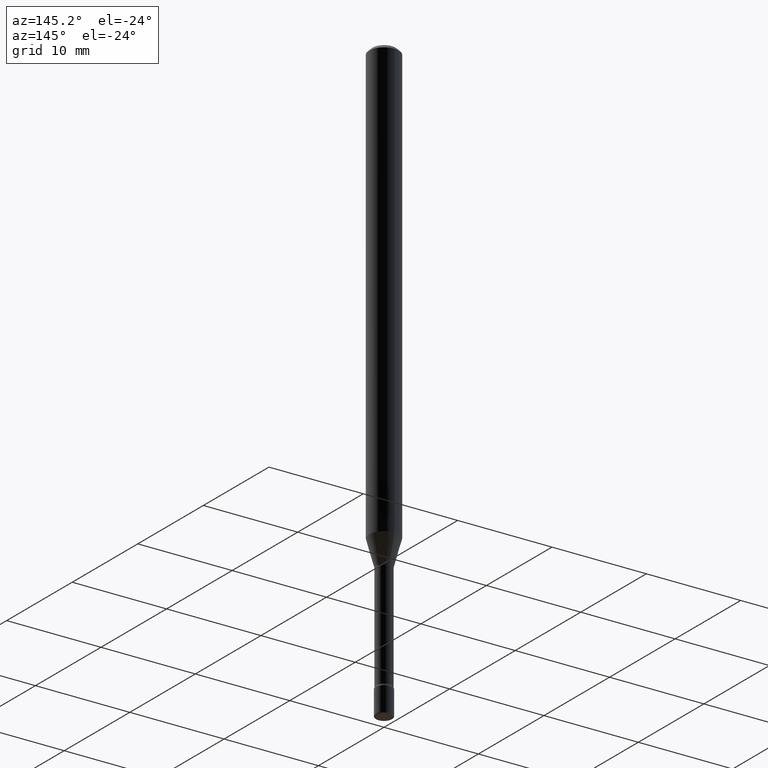
[diagram: clean part render]
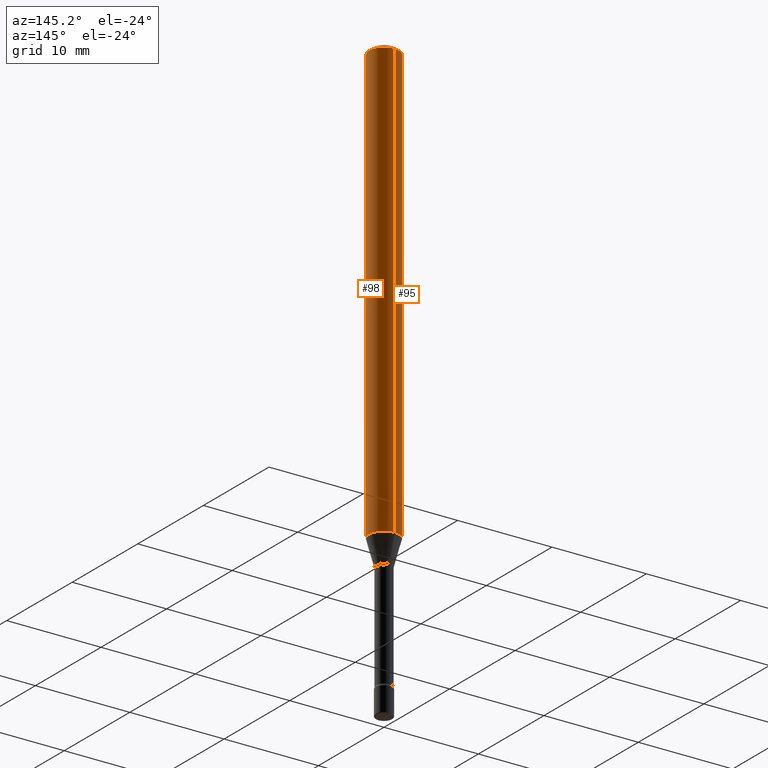
[diagram: same view with one multi-face feature highlighted, each face labeled with its STEP entity id]
A machine part, auxiliary view. The highlighted faces form ONE feature: a constant-radius fillet chain: 2 tangent blend faces with common blend radius 1.5875 mm. The faces share edges in the B-rep.
Their STEP definitions:
[1] entity #95 (Cylinder):
#1 = CARTESIAN_POINT ( 'NONE',  ( -1.169113584055446105E-44, 1.669184350826100908E-30, 4.780733988912460139E-16 ) ) ;
#16 = VERTEX_POINT ( 'NONE', #233 ) ;
#23 = ORIENTED_EDGE ( 'NONE', *, *, #413, .T. ) ;
#26 = DIRECTION ( 'NONE',  ( -6.982962677686265922E-15, -1.000000000000000000, 4.370956789862821150E-15 ) ) ;
#54 = ORIENTED_EDGE ( 'NONE', *, *, #505, .T. ) ;
#63 = ORIENTED_EDGE ( 'NONE', *, *, #197, .F. ) ;
#73 = DIRECTION ( 'NONE',  ( -2.445361929537154917E-29, 3.491634392286096321E-15, 1.000000000000000000 ) ) ;
#85 = CARTESIAN_POINT ( 'NONE',  ( 4.440892098500625669E-16, 0.06250000000000000000, 2.598462493733650432E-16 ) ) ;
#89 = CARTESIAN_POINT ( 'NONE',  ( -4.364351673553912750E-16, -0.06250000000000005551, -0.01499999999999981036 ) ) ;
#92 = AXIS2_PLACEMENT_3D ( 'NONE', #244, #530, #304 ) ;
#95 = ADVANCED_FACE ( 'NONE', ( #339 ), #388, .T. ) ;
#104 = EDGE_LOOP ( 'NONE', ( #63, #23, #54, #561 ) ) ;
#121 = VERTEX_POINT ( 'NONE', #168 ) ;
#123 = VECTOR ( 'NONE', #434, 39.37007874015748143 ) ;
#127 = DIRECTION ( 'NONE',  ( -6.982962677686265922E-15, -1.000000000000000000, 3.491634392286095926E-15 ) ) ;
#164 = CARTESIAN_POINT ( 'NONE',  ( 4.473866180369832235E-29, -6.388054395212417498E-15, -1.829531296095961546 ) ) ;
#168 = CARTESIAN_POINT ( 'NONE',  ( 4.440892098501075812E-16, 0.06249999999999995143, -0.01500000000000024578 ) ) ;
#197 = EDGE_CURVE ( 'NONE', #16, #121, #482, .T. ) ;
#213 = VECTOR ( 'NONE', #73, 39.37007874015748143 ) ;
#233 = CARTESIAN_POINT ( 'NONE',  ( 4.440892098501069896E-16, 0.06249999999999358152, -1.829531296095961990 ) ) ;
#244 = CARTESIAN_POINT ( 'NONE',  ( 3.668042894305739311E-31, -5.237451588429154292E-17, -0.01500000000000002720 ) ) ;
#291 = LINE ( 'NONE', #418, #213 ) ;
#304 = DIRECTION ( 'NONE',  ( -6.982962677686265922E-15, -1.000000000000000000, 3.483106191921935554E-15 ) ) ;
#306 = VERTEX_POINT ( 'NONE', #353 ) ;
#310 = VERTEX_POINT ( 'NONE', #89 ) ;
#323 = CIRCLE ( 'NONE', #332, 0.06250000000000000000 ) ;
#332 = AXIS2_PLACEMENT_3D ( 'NONE', #164, #378, #26 ) ;
#339 = FACE_OUTER_BOUND ( 'NONE', #104, .T. ) ;
#353 = CARTESIAN_POINT ( 'NONE',  ( -4.364351673553470495E-16, -0.06250000000000641154, -1.829531296095961324 ) ) ;
#378 = DIRECTION ( 'NONE',  ( -2.445361929537154917E-29, 3.491634392286096321E-15, 1.000000000000000000 ) ) ;
#388 = CYLINDRICAL_SURFACE ( 'NONE', #488, 0.06250000000000000000 ) ;
#410 = CIRCLE ( 'NONE', #92, 0.06250000000000000000 ) ;
#413 = EDGE_CURVE ( 'NONE', #16, #306, #323, .T. ) ;
#418 = CARTESIAN_POINT ( 'NONE',  ( -4.364351673553916201E-16, -0.06250000000000000000, 6.963005484091270833E-16 ) ) ;
#434 = DIRECTION ( 'NONE',  ( -2.445361929537154917E-29, 3.491634392286096321E-15, 1.000000000000000000 ) ) ;
#482 = LINE ( 'NONE', #85, #123 ) ;
#485 = DIRECTION ( 'NONE',  ( -2.445361929537154917E-29, 3.491634392286096321E-15, 1.000000000000000000 ) ) ;
#488 = AXIS2_PLACEMENT_3D ( 'NONE', #1, #485, #127 ) ;
#505 = EDGE_CURVE ( 'NONE', #306, #310, #291, .T. ) ;
#530 = DIRECTION ( 'NONE',  ( -2.445361929537154917E-29, 3.491634392286096321E-15, 1.000000000000000000 ) ) ;
#561 = ORIENTED_EDGE ( 'NONE', *, *, #570, .F. ) ;
#570 = EDGE_CURVE ( 'NONE', #121, #310, #410, .T. ) ;
[2] entity #98 (Cylinder):
#4 = CYLINDRICAL_SURFACE ( 'NONE', #437, 0.06250000000000000000 ) ;
#16 = VERTEX_POINT ( 'NONE', #233 ) ;
#73 = DIRECTION ( 'NONE',  ( -2.445361929537154917E-29, 3.491634392286096321E-15, 1.000000000000000000 ) ) ;
#85 = CARTESIAN_POINT ( 'NONE',  ( 4.440892098500625669E-16, 0.06250000000000000000, 2.598462493733650432E-16 ) ) ;
#89 = CARTESIAN_POINT ( 'NONE',  ( -4.364351673553912750E-16, -0.06250000000000005551, -0.01499999999999981036 ) ) ;
#98 = ADVANCED_FACE ( 'NONE', ( #523 ), #4, .T. ) ;
#100 = DIRECTION ( 'NONE',  ( -6.982962677686265922E-15, -1.000000000000000000, 4.370956789862821150E-15 ) ) ;
#118 = ORIENTED_EDGE ( 'NONE', *, *, #197, .T. ) ;
#121 = VERTEX_POINT ( 'NONE', #168 ) ;
#123 = VECTOR ( 'NONE', #434, 39.37007874015748143 ) ;
#168 = CARTESIAN_POINT ( 'NONE',  ( 4.440892098501075812E-16, 0.06249999999999995143, -0.01500000000000024578 ) ) ;
#175 = AXIS2_PLACEMENT_3D ( 'NONE', #309, #541, #316 ) ;
#193 = CIRCLE ( 'NONE', #175, 0.06250000000000000000 ) ;
#197 = EDGE_CURVE ( 'NONE', #16, #121, #482, .T. ) ;
#213 = VECTOR ( 'NONE', #73, 39.37007874015748143 ) ;
#224 = ORIENTED_EDGE ( 'NONE', *, *, #352, .F. ) ;
#233 = CARTESIAN_POINT ( 'NONE',  ( 4.440892098501069896E-16, 0.06249999999999358152, -1.829531296095961990 ) ) ;
#243 = ORIENTED_EDGE ( 'NONE', *, *, #505, .F. ) ;
#253 = DIRECTION ( 'NONE',  ( -2.445361929537154917E-29, 3.491634392286096321E-15, 1.000000000000000000 ) ) ;
#283 = EDGE_LOOP ( 'NONE', ( #361, #118, #224, #243 ) ) ;
#291 = LINE ( 'NONE', #418, #213 ) ;
#299 = CARTESIAN_POINT ( 'NONE',  ( -1.169113584055446105E-44, 1.669184350826100908E-30, 4.780733988912460139E-16 ) ) ;
#306 = VERTEX_POINT ( 'NONE', #353 ) ;
#309 = CARTESIAN_POINT ( 'NONE',  ( 3.668042894305739311E-31, -5.237451588429154292E-17, -0.01500000000000002720 ) ) ;
#310 = VERTEX_POINT ( 'NONE', #89 ) ;
#316 = DIRECTION ( 'NONE',  ( -6.982962677686265922E-15, -1.000000000000000000, 3.483106191921935554E-15 ) ) ;
#345 = DIRECTION ( 'NONE',  ( -6.982962677686265922E-15, -1.000000000000000000, 3.491634392286095926E-15 ) ) ;
#352 = EDGE_CURVE ( 'NONE', #310, #121, #193, .T. ) ;
#353 = CARTESIAN_POINT ( 'NONE',  ( -4.364351673553470495E-16, -0.06250000000000641154, -1.829531296095961324 ) ) ;
#361 = ORIENTED_EDGE ( 'NONE', *, *, #363, .T. ) ;
#363 = EDGE_CURVE ( 'NONE', #306, #16, #470, .T. ) ;
#418 = CARTESIAN_POINT ( 'NONE',  ( -4.364351673553916201E-16, -0.06250000000000000000, 6.963005484091270833E-16 ) ) ;
#434 = DIRECTION ( 'NONE',  ( -2.445361929537154917E-29, 3.491634392286096321E-15, 1.000000000000000000 ) ) ;
#437 = AXIS2_PLACEMENT_3D ( 'NONE', #299, #253, #345 ) ;
#443 = CARTESIAN_POINT ( 'NONE',  ( 4.473866180369832235E-29, -6.388054395212417498E-15, -1.829531296095961546 ) ) ;
#470 = CIRCLE ( 'NONE', #538, 0.06250000000000000000 ) ;
#482 = LINE ( 'NONE', #85, #123 ) ;
#486 = DIRECTION ( 'NONE',  ( -2.445361929537154917E-29, 3.491634392286096321E-15, 1.000000000000000000 ) ) ;
#505 = EDGE_CURVE ( 'NONE', #306, #310, #291, .T. ) ;
#523 = FACE_OUTER_BOUND ( 'NONE', #283, .T. ) ;
#538 = AXIS2_PLACEMENT_3D ( 'NONE', #443, #486, #100 ) ;
#541 = DIRECTION ( 'NONE',  ( -2.445361929537154917E-29, 3.491634392286096321E-15, 1.000000000000000000 ) ) ;